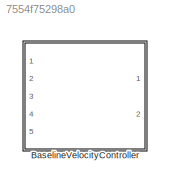
MODEL slx_7554f75298a0
KIND library
CONFIG AbsTol = auto
CONFIG EnableMultiTasking = off
CONFIG FixedStep = auto
CONFIG MaxStep = auto
CONFIG MinStep = auto
CONFIG RelTol = 1e-3
CONFIG SampleTimeConstraint = Unconstrained
CONFIG Solver = VariableStepAuto
CONFIG SolverName = VariableStepAuto
CONFIG StartTime = 0.0
CONFIG StopTime = 10.0
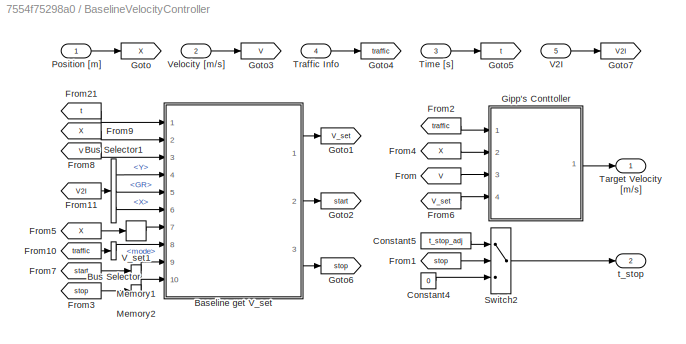
BLOCK [SubSystem] BaselineVelocityController
  Ports = [5, 2]
  RequestExecContextInheritance = off
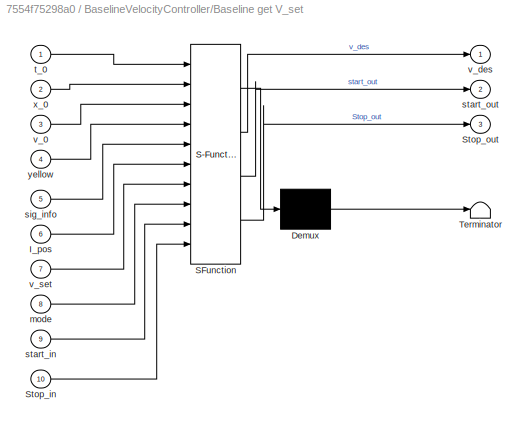
BLOCK [SubSystem] BaselineVelocityController/Baseline get V_set
  ErrorFcn = Stateflow.Translate.translate
  NameLocation = top
  PermitHierarchicalResolution = ExplicitOnly
  Ports = [10, 3]
  RequestExecContextInheritance = off
  SFBlockType = MATLAB Function
  TreatAsAtomicUnit = on
BLOCK [Demux] BaselineVelocityController/Baseline get V_set/ Demux 
  Outputs = 1
  Ports = [1, 1]
BLOCK [S-Function] BaselineVelocityController/Baseline get V_set/ SFunction 
  EnableBusSupport = off
  FunctionName = sf_sfun
  PortCounts = [10 4]
  Ports = [10, 4]
  SFcnIsStateOwnerBlock = off
  SFunctionDeploymentMode = off
  Tag = Stateflow S-Function 3
BLOCK [Terminator] BaselineVelocityController/Baseline get V_set/ Terminator 
BLOCK [Inport] BaselineVelocityController/Baseline get V_set/I_pos
  Port = 6
BLOCK [Inport] BaselineVelocityController/Baseline get V_set/Stop_in
  Port = 10
BLOCK [Outport] BaselineVelocityController/Baseline get V_set/Stop_out
  Port = 3
  VectorParamsAs1DForOutWhenUnconnected = off
BLOCK [Inport] BaselineVelocityController/Baseline get V_set/mode
  Port = 8
BLOCK [Inport] BaselineVelocityController/Baseline get V_set/sig_info
  Port = 5
BLOCK [Inport] BaselineVelocityController/Baseline get V_set/start_in
  Port = 9
BLOCK [Outport] BaselineVelocityController/Baseline get V_set/start_out
  Port = 2
  VectorParamsAs1DForOutWhenUnconnected = off
BLOCK [Inport] BaselineVelocityController/Baseline get V_set/t_0
BLOCK [Inport] BaselineVelocityController/Baseline get V_set/v_0
  Port = 3
BLOCK [Outport] BaselineVelocityController/Baseline get V_set/v_des
  VectorParamsAs1DForOutWhenUnconnected = off
BLOCK [Inport] BaselineVelocityController/Baseline get V_set/v_set
  Port = 7
BLOCK [Inport] BaselineVelocityController/Baseline get V_set/x_0
  Port = 2
BLOCK [Inport] BaselineVelocityController/Baseline get V_set/yellow
  Port = 4
BLOCK [BusSelector] BaselineVelocityController/Bus Selector
  OutputSignals = mode
  Ports = [1, 1]
BLOCK [BusSelector] BaselineVelocityController/Bus Selector1
  OutputSignals = Signal.Y,Signal.GR,Signal.X
  Ports = [1, 3]
BLOCK [Constant] BaselineVelocityController/Constant4
  Value = 0
BLOCK [Constant] BaselineVelocityController/Constant5
  Value = t_stop_adj
BLOCK [From] BaselineVelocityController/From
  GotoTag = V
BLOCK [From] BaselineVelocityController/From1
  GotoTag = stop
BLOCK [From] BaselineVelocityController/From10
  GotoTag = traffic
BLOCK [From] BaselineVelocityController/From11
  GotoTag = V2I
BLOCK [From] BaselineVelocityController/From2
  GotoTag = traffic
BLOCK [From] BaselineVelocityController/From21
  GotoTag = t
BLOCK [From] BaselineVelocityController/From3
  GotoTag = stop
BLOCK [From] BaselineVelocityController/From4
  GotoTag = X
BLOCK [From] BaselineVelocityController/From5
  GotoTag = X
BLOCK [From] BaselineVelocityController/From6
  GotoTag = V_set
BLOCK [From] BaselineVelocityController/From7
  GotoTag = start
BLOCK [From] BaselineVelocityController/From8
  GotoTag = V
BLOCK [From] BaselineVelocityController/From9
  GotoTag = X
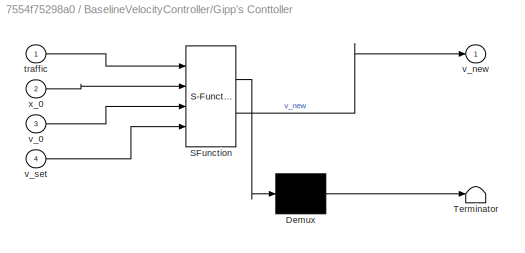
BLOCK [SubSystem] BaselineVelocityController/Gipp's Conttoller
  ErrorFcn = Stateflow.Translate.translate
  NameLocation = top
  PermitHierarchicalResolution = ExplicitOnly
  Ports = [4, 1]
  RequestExecContextInheritance = off
  SFBlockType = MATLAB Function
  TreatAsAtomicUnit = on
BLOCK [Demux] BaselineVelocityController/Gipp's Conttoller/ Demux 
  Outputs = 1
  Ports = [1, 1]
BLOCK [S-Function] BaselineVelocityController/Gipp's Conttoller/ SFunction 
  EnableBusSupport = off
  FunctionName = sf_sfun
  PortCounts = [4 2]
  Ports = [4, 2]
  SFcnIsStateOwnerBlock = off
  SFunctionDeploymentMode = off
  Tag = Stateflow S-Function 19
BLOCK [Terminator] BaselineVelocityController/Gipp's Conttoller/ Terminator 
BLOCK [Inport] BaselineVelocityController/Gipp's Conttoller/traffic
BLOCK [Inport] BaselineVelocityController/Gipp's Conttoller/v_0
  Port = 3
BLOCK [Outport] BaselineVelocityController/Gipp's Conttoller/v_new
  VectorParamsAs1DForOutWhenUnconnected = off
BLOCK [Inport] BaselineVelocityController/Gipp's Conttoller/v_set
  Port = 4
BLOCK [Inport] BaselineVelocityController/Gipp's Conttoller/x_0
  Port = 2
BLOCK [Goto] BaselineVelocityController/Goto
  GotoTag = X
BLOCK [Goto] BaselineVelocityController/Goto1
  GotoTag = V_set
BLOCK [Goto] BaselineVelocityController/Goto2
  GotoTag = start
BLOCK [Goto] BaselineVelocityController/Goto3
  GotoTag = V
BLOCK [Goto] BaselineVelocityController/Goto4
  GotoTag = traffic
BLOCK [Goto] BaselineVelocityController/Goto5
  GotoTag = t
BLOCK [Goto] BaselineVelocityController/Goto6
  GotoTag = stop
BLOCK [Goto] BaselineVelocityController/Goto7
  GotoTag = V2I
BLOCK [Memory] BaselineVelocityController/Memory1
  InitialCondition = [0 0]
BLOCK [Memory] BaselineVelocityController/Memory2
BLOCK [Inport] BaselineVelocityController/Position [m]
BLOCK [Switch] BaselineVelocityController/Switch2
  Criteria = u2 ~= 0
  InputSameDT = off
  SaturateOnIntegerOverflow = off
BLOCK [Outport] BaselineVelocityController/Target Velocity [m//s]
  VectorParamsAs1DForOutWhenUnconnected = off
BLOCK [Inport] BaselineVelocityController/Time [s]
  Port = 3
BLOCK [Inport] BaselineVelocityController/Traffic Info
  Port = 4
BLOCK [Inport] BaselineVelocityController/V2I
  Port = 5
BLOCK [Lookup_n-D] BaselineVelocityController/V_set1
  BreakpointsForDimension1 = UNCC.X_vec
  ExtrapMethod = Clip
  InterpMethod = Flat
  NumberOfTableDimensions = 1
  Ports = [1, 1]
  Table = UNCC.V_lim
BLOCK [Inport] BaselineVelocityController/Velocity [m//s]
  Port = 2
BLOCK [Outport] BaselineVelocityController/t_stop
  Port = 2
  VectorParamsAs1DForOutWhenUnconnected = off
LINE BaselineVelocityController/Baseline get V_set:1 -> BaselineVelocityController/Goto1:1
LINE BaselineVelocityController/Baseline get V_set:2 -> BaselineVelocityController/Goto2:1
LINE BaselineVelocityController/Baseline get V_set:3 -> BaselineVelocityController/Goto6:1
LINE BaselineVelocityController/Bus Selector1:1 -> BaselineVelocityController/Baseline get V_set:4
LINE BaselineVelocityController/Bus Selector1:2 -> BaselineVelocityController/Baseline get V_set:5
LINE BaselineVelocityController/Bus Selector1:3 -> BaselineVelocityController/Baseline get V_set:6
LINE BaselineVelocityController/Bus Selector:1 -> BaselineVelocityController/Baseline get V_set:8
LINE BaselineVelocityController/Constant4:1 -> BaselineVelocityController/Switch2:3
LINE BaselineVelocityController/Constant5:1 -> BaselineVelocityController/Switch2:1
LINE BaselineVelocityController/From10:1 -> BaselineVelocityController/Bus Selector:1
LINE BaselineVelocityController/From11:1 -> BaselineVelocityController/Bus Selector1:1
LINE BaselineVelocityController/From1:1 -> BaselineVelocityController/Switch2:2
LINE BaselineVelocityController/From21:1 -> BaselineVelocityController/Baseline get V_set:1
LINE BaselineVelocityController/From2:1 -> BaselineVelocityController/Gipp's Conttoller:1
LINE BaselineVelocityController/From3:1 -> BaselineVelocityController/Memory2:1
LINE BaselineVelocityController/From4:1 -> BaselineVelocityController/Gipp's Conttoller:2
LINE BaselineVelocityController/From5:1 -> BaselineVelocityController/V_set1:1
LINE BaselineVelocityController/From6:1 -> BaselineVelocityController/Gipp's Conttoller:4
LINE BaselineVelocityController/From7:1 -> BaselineVelocityController/Memory1:1
LINE BaselineVelocityController/From8:1 -> BaselineVelocityController/Baseline get V_set:3
LINE BaselineVelocityController/From9:1 -> BaselineVelocityController/Baseline get V_set:2
LINE BaselineVelocityController/From:1 -> BaselineVelocityController/Gipp's Conttoller:3
LINE BaselineVelocityController/Gipp's Conttoller:1 -> BaselineVelocityController/Target Velocity [m//s]:1
LINE BaselineVelocityController/Memory1:1 -> BaselineVelocityController/Baseline get V_set:9
LINE BaselineVelocityController/Memory2:1 -> BaselineVelocityController/Baseline get V_set:10
LINE BaselineVelocityController/Position [m]:1 -> BaselineVelocityController/Goto:1
LINE BaselineVelocityController/Switch2:1 -> BaselineVelocityController/t_stop:1
LINE BaselineVelocityController/Time [s]:1 -> BaselineVelocityController/Goto5:1
LINE BaselineVelocityController/Traffic Info:1 -> BaselineVelocityController/Goto4:1
LINE BaselineVelocityController/V2I:1 -> BaselineVelocityController/Goto7:1
LINE BaselineVelocityController/V_set1:1 -> BaselineVelocityController/Baseline get V_set:7
LINE BaselineVelocityController/Velocity [m//s]:1 -> BaselineVelocityController/Goto3:1
CHART BaselineVelocityController/Baseline get V_set states=1 transitions=1
  STATE_LABEL 'eML_blk_kernel()'
  STATE_LABEL 'SCRIPT:\nfunction [v_des,start_out,Stop_out] = fcn(t_0,x_0,v_0,yellow,sig_info,I_pos,v_set,mode,start_in,Stop_in)\n\nG = sig_info(:,:,2);                                    %   s - Intersection green phases \nCs = sig_info(:,:,3);                                   %   s - Cycle start times \nwindow = 150;                                           %   m - Driver sight range\ndt = .01;                    ...<+1885ch>'
CHART BaselineVelocityController/Gipp's Conttoller states=1 transitions=1
  STATE_LABEL 'eML_blk_kernel()'
  STATE_LABEL 'SCRIPT:\nfunction v_new  = fcn(traffic,x_0,v_0,v_set)\n\ntau = 0.75;                 %   s - Driver reaction time\na_n = 2;                    %   m/s^2 - Maximum acceleration\nb_n = -2*a_n;               %   m/s^2 - Maximum brake acceleration\nb_hat = -2;                 %   m/s^2 - Estimated lead vehicle brake acceleration\nt_n = 2;                    %   s - Safe following time\n\nx_lead = traffic(1);  ...<+654ch>'
CHART  states=0 transitions=0
CHART  states=0 transitions=0
